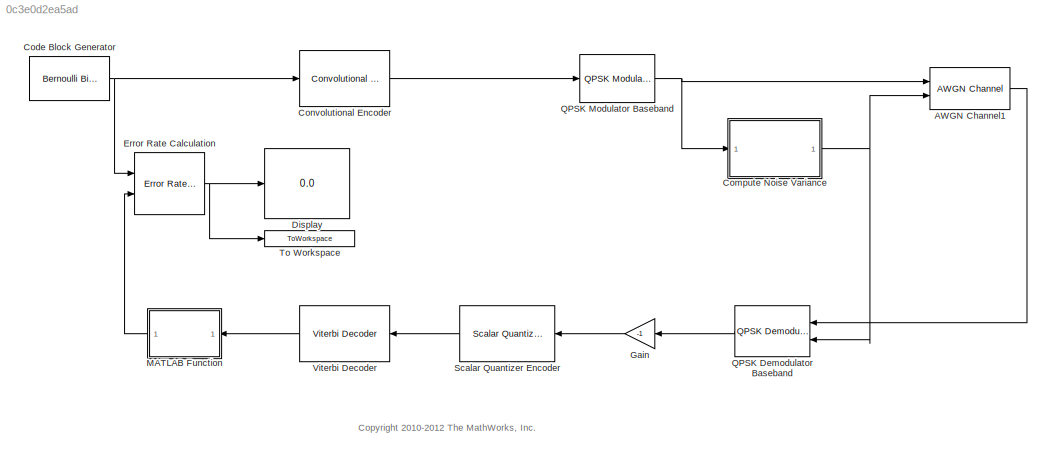
MODEL slx_0c3e0d2ea5ad
KIND model
CONFIG PreLoadFcn = EbNo=0;\nmaxNumErrs=200;\nmaxNumBits=1e8;
BLOCK [Reference] AWGN Channel1  REF=commchan3/AWGN
Channel
  EbNodB = 10
  EsNodB = 15
  InputProcessing = Columns as channels (frame based)
  Ports = [2, 1]
  Ps = 1
  SNRdB = 10
  SourceBlock = commchan3/AWGN\nChannel
  SourceType = AWGN Channel
  Tsym = 1e-6
  UserDataPersistent = on
  bitsPerSym = 1
  noiseMode = Variance from port
  seed = 67
  variance = 1
BLOCK [Reference] Code Block Generator  REF=commrandsrc2/Bernoulli Binary
Generator
  P = 0.5
  Ports = [0, 1]
  SourceBlock = commrandsrc2/Bernoulli Binary\nGenerator
  SourceType = Bernoulli Binary Generator
  Ts = 1/2040
  frameBased = on
  orient = off
  outDataType = boolean
  sampPerFrame = 2040
  seed = 12345
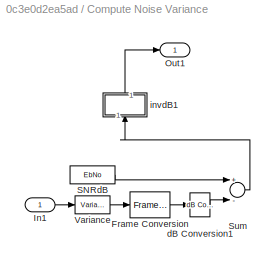
BLOCK [SubSystem] Compute Noise Variance
  Ports = [1, 1]
  RequestExecContextInheritance = off
BLOCK [FrameConversion] Compute Noise Variance/Frame Conversion
  OutFrame = Sample-based
  Ports = [1, 1]
BLOCK [Inport] Compute Noise Variance/In1
  IconDisplay = Port number
BLOCK [Outport] Compute Noise Variance/Out1
  IconDisplay = Port number
BLOCK [Constant] Compute Noise Variance/SNRdB
  Value = EbNo
BLOCK [Sum] Compute Noise Variance/Sum
  InputSameDT = off
  Inputs = +-
  OutDataTypeStr = Inherit: Inherit via internal rule
  Ports = [2, 1]
BLOCK [Reference] Compute Noise Variance/Variance  REF=dspstat3/Variance
  InputProcessing = Columns as channels (frame based)
  LockScale = off
  Ports = [1, 1]
  SourceBlock = dspstat3/Variance
  SourceType = Variance
  UserDataPersistent = on
  accumFracLength = 30
  accumMode = Same as input
  accumWordLength = 32
  additionalParams = off
  allowOverrides = on
  dimension = 1
  directionMode = Each column
  memoryFracLength = 30
  memoryMode = Same as input-squared product
  memoryWordLength = 32
  outputFracLength = 30
  outputMode = Same as accumulator
  outputWordLength = 32
  overflowMode = off
  prodOutputFracLength = 30
  prodOutputMode = Same as input
  prodOutputWordLength = 32
  reset_popup = None
  roiEnable = off
  roiFlag = off
  roiOutput = Individual statistics for each ROI
  roiPortion = Entire ROI
  roiType = Rectangles
  roundingMode = Floor
  run = off
  treatSBRowAsCol = on
BLOCK [Reference] Compute Noise Variance/dB Conversion1  REF=dspmathops/dB Conversion
  Ports = [1, 1]
  R = 1
  SourceBlock = dspmathops/dB Conversion
  SourceType = dB Conversion
  dBtype = dB
  fuzz = on
  intype = Power
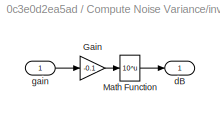
BLOCK [SubSystem] Compute Noise Variance/invdB1
  Ports = [1, 1]
  RequestExecContextInheritance = off
BLOCK [Gain] Compute Noise Variance/invdB1/Gain
  Gain = -0.1
BLOCK [Math] Compute Noise Variance/invdB1/Math Function
  Operator = 10^u
  Ports = [1, 1]
BLOCK [Outport] Compute Noise Variance/invdB1/dB
  IconDisplay = Port number
BLOCK [Inport] Compute Noise Variance/invdB1/gain
  IconDisplay = Port number
BLOCK [Reference] Convolutional Encoder  REF=commcnvcod2/Convolutional
Encoder
  DelayedResetAction = off
  Ports = [1, 1]
  SourceBlock = commcnvcod2/Convolutional\nEncoder
  SourceType = Convolutional Encoder
  hasFinStPort = off
  hasIniStPort = off
  opMode = Terminate trellis by appending bits
  punctureVector = [1; 1; 0; 1; 0; 1]
  reset = Unused parameter value
  trellis = poly2trellis(7, [171 133])
  usePuncVector = off
BLOCK [Display] Display
  Decimation = 1
  Ports = [1]
BLOCK [Reference] Error Rate Calculation  REF=commsink2/Error Rate
Calculation
  N = 0
  PMode = Port
  Ports = [2, 1]
  RsMode2 = off
  SourceBlock = commsink2/Error Rate\nCalculation
  SourceType = Error Rate Calculation
  WsName = ErrorVec1
  cp_mode = Entire frame
  maxBits = maxNumBits
  numErr = maxNumErrs
  st_delay = 0
  stop = on
  subframe = []
BLOCK [Gain] Gain
  Gain = -1
  Multiplication = Matrix(K*u)
  OutDataTypeStr = Inherit: Inherit via internal rule
  ParamDataTypeStr = Inherit: Inherit via internal rule
  SaturateOnIntegerOverflow = off
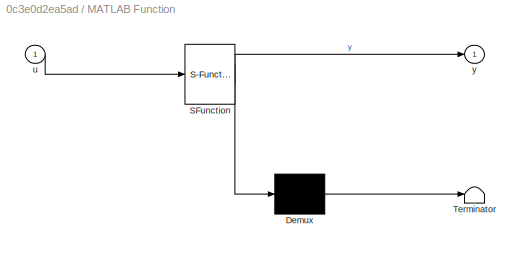
BLOCK [SubSystem] MATLAB Function
  ErrorFcn = Stateflow.Translate.translate
  PermitHierarchicalResolution = ExplicitOnly
  Ports = [1, 1]
  RequestExecContextInheritance = off
  SFBlockType = MATLAB Function
  TreatAsAtomicUnit = on
BLOCK [Demux] MATLAB Function/ Demux 
  Outputs = 1
  Ports = [1, 1]
BLOCK [S-Function] MATLAB Function/ SFunction 
  EnableBusSupport = off
  FunctionName = sf_sfun
  PortCounts = [1 2]
  Ports = [1, 2]
  Tag = Stateflow S-Function doc_design_iteration_viterbi_soft 2
BLOCK [Terminator] MATLAB Function/ Terminator 
BLOCK [Inport] MATLAB Function/u
  IconDisplay = Port number
BLOCK [Outport] MATLAB Function/y
  IconDisplay = Port number
BLOCK [Reference] QPSK Demodulator Baseband  REF=commdigbbndpm3/QPSK
Demodulator
Baseband
  Dec = Gray
  DecType = Log-likelihood ratio
  OutType = Bit
  Ph = pi/4
  Ports = [2, 1]
  SourceBlock = commdigbbndpm3/QPSK\nDemodulator\nBaseband
  SourceType = QPSK Demodulator Baseband
  VarSource = Port
  Variance = 1
  derotateFactorDTMode = Same word length as input
  derotateFactorWordLen = 16
  outDtype1 = boolean
  outDtype2 = Inherit via internal rule
BLOCK [Reference] QPSK Modulator Baseband  REF=commdigbbndpm3/QPSK
Modulator
Baseband
  Enc = Gray
  InType = Bit
  Ph = pi/4
  Ports = [1, 1]
  SourceBlock = commdigbbndpm3/QPSK\nModulator\nBaseband
  SourceType = QPSK Modulator Baseband
  outDtype = double
  outFracLen = 15
  outFracLenMode = Best precision
  outUDDataType = sfix(16)
  outWordLen = 16
BLOCK [Reference] Scalar Quantizer Encoder  REF=dspquant2/Scalar Quantizer
Encoder
  BBoundary = [1:10]
  Ports = [1, 1]
  SearchMethod = Linear
  SourceBlock = dspquant2/Scalar Quantizer\nEncoder
  SourceType = Scalar Quantizer Encoder
  UBoundary = [-7:7]
  additionalParams = off
  allowOverrides = on
  codebook = [1.5:9.5]
  idtype = uint8
  invalidin = Clip
  outQError = off
  outQU = off
  outStatus = off
  overflowMode = off
  paramSrc = Specify via dialog
  partType = Unbounded
  roundingMode = Floor
  tieBreakRule = Choose the lower index
BLOCK [ToWorkspace] To Workspace
  MaxDataPoints = 1
  Ports = [1]
  SampleTime = -1
  VariableName = ber
BLOCK [Reference] Viterbi Decoder  REF=commcnvcod2/Viterbi Decoder
  Ports = [1, 1]
  SourceBlock = commcnvcod2/Viterbi Decoder
  SourceType = Viterbi Decoder
  dectype = Soft decision
  delayedResetAction = off
  erasures = off
  isPunctured = off
  nsdecb = 4
  opmode = Terminated
  outDataType = boolean
  punctureVector = [1; 1; 0; 1; 0; 1]
  reset = off
  runSigValErrCheck = off
  smWordLength = 16
  tbdepth = 34
  trellis = poly2trellis(7, [171 133])
ANNOTATION (root): <copyright redacted>
LINE AWGN Channel1:1 -> QPSK Demodulator Baseband:1
NET Code Block Generator:1 -> Convolutional Encoder:1, Error Rate Calculation:1
LINE Compute Noise Variance/Frame Conversion:1 -> Compute Noise Variance/dB Conversion1:1
LINE Compute Noise Variance/In1:1 -> Compute Noise Variance/Variance:1
LINE Compute Noise Variance/SNRdB:1 -> Compute Noise Variance/Sum:1
LINE Compute Noise Variance/Sum:1 -> Compute Noise Variance/invdB1:1
LINE Compute Noise Variance/Variance:1 -> Compute Noise Variance/Frame Conversion:1
LINE Compute Noise Variance/dB Conversion1:1 -> Compute Noise Variance/Sum:2
LINE Compute Noise Variance/invdB1/Gain:1 -> Compute Noise Variance/invdB1/Math Function:1
LINE Compute Noise Variance/invdB1/Math Function:1 -> Compute Noise Variance/invdB1/dB:1
LINE Compute Noise Variance/invdB1/gain:1 -> Compute Noise Variance/invdB1/Gain:1
LINE Compute Noise Variance/invdB1:1 -> Compute Noise Variance/Out1:1
NET Compute Noise Variance:1 -> AWGN Channel1:2, QPSK Demodulator Baseband:2
LINE Convolutional Encoder:1 -> QPSK Modulator Baseband:1
NET Error Rate Calculation:1 -> Display:1, To Workspace:1
LINE Gain:1 -> Scalar Quantizer Encoder:1
LINE MATLAB Function:1 -> Error Rate Calculation:2
LINE QPSK Demodulator Baseband:1 -> Gain:1
NET QPSK Modulator Baseband:1 -> AWGN Channel1:1, Compute Noise Variance:1
LINE Scalar Quantizer Encoder:1 -> Viterbi Decoder:1
LINE Viterbi Decoder:1 -> MATLAB Function:1
note: NET lines group one-source signal fan-out (src -> all destinations, sorted); 1:1 wires keep LINE
